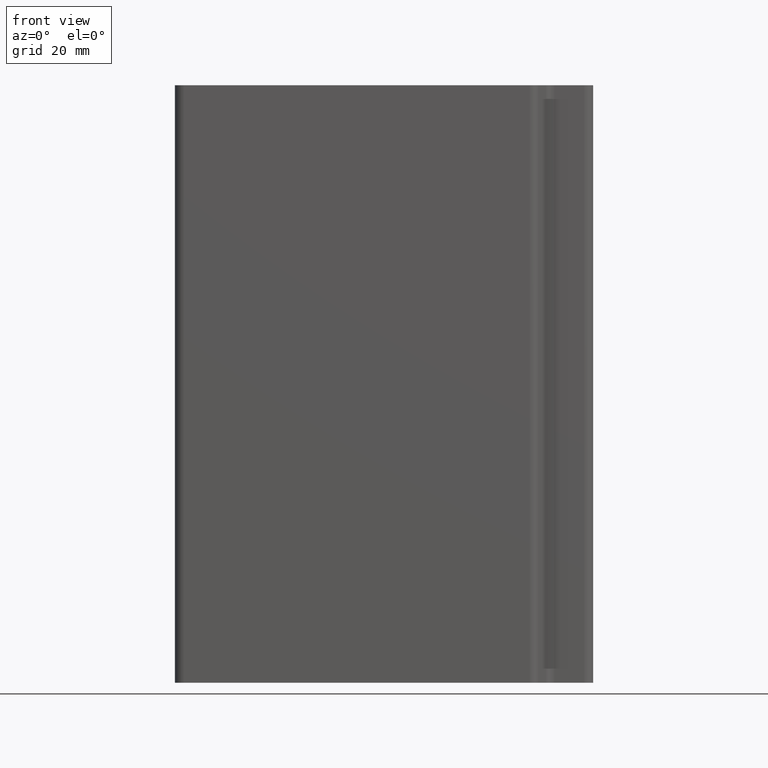
[diagram: clean part render]
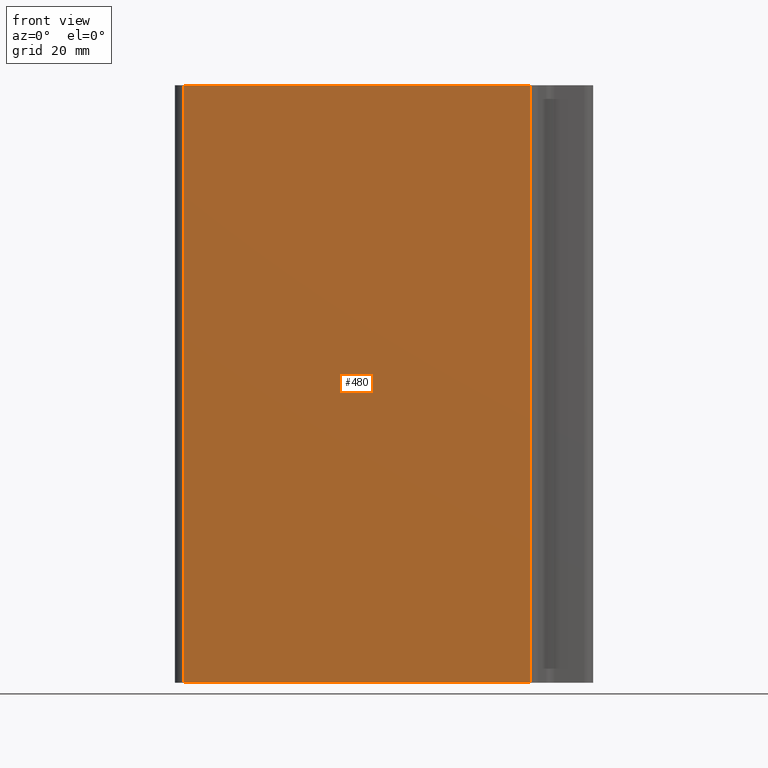
[diagram: same view with one face highlighted and labeled with its STEP entity id]
A machine part, front view. The second image highlights one B-rep face of the part: STEP entity #480.
In plain terms, the highlighted planar face has unit normal (-0, -1, 0).
Its self-contained STEP definition (entity closure, byte-faithful):
#16=PLANE('',#524);
#32=FACE_OUTER_BOUND('',#58,.T.);
#58=EDGE_LOOP('',(#333,#334,#335,#336));
#86=LINE('',#738,#134);
#87=LINE('',#741,#135);
#88=LINE('',#743,#136);
#89=LINE('',#744,#137);
#134=VECTOR('',#588,10.);
#135=VECTOR('',#591,10.);
#136=VECTOR('',#592,10.);
#137=VECTOR('',#593,10.);
#207=VERTEX_POINT('',#734);
#208=VERTEX_POINT('',#736);
#209=VERTEX_POINT('',#740);
#210=VERTEX_POINT('',#742);
#258=EDGE_CURVE('',#207,#208,#86,.T.);
#259=EDGE_CURVE('',#209,#207,#87,.T.);
#260=EDGE_CURVE('',#210,#208,#88,.T.);
#261=EDGE_CURVE('',#209,#210,#89,.T.);
#333=ORIENTED_EDGE('',*,*,#259,.T.);
#334=ORIENTED_EDGE('',*,*,#258,.T.);
#335=ORIENTED_EDGE('',*,*,#260,.F.);
#336=ORIENTED_EDGE('',*,*,#261,.F.);
#480=ADVANCED_FACE('',(#32),#16,.T.);
#524=AXIS2_PLACEMENT_3D('',#739,#589,#590);
#588=DIRECTION('',(0.,0.,1.));
#589=DIRECTION('center_axis',(-9.38209028727762E-34,-1.,0.));
#590=DIRECTION('ref_axis',(1.,-9.38209028727762E-34,0.));
#591=DIRECTION('',(1.,-9.38209028727762E-34,0.));
#592=DIRECTION('',(1.,-9.38209028727762E-34,0.));
#593=DIRECTION('',(0.,0.,1.));
#734=CARTESIAN_POINT('',(39.8444642362168,0.,0.));
#736=CARTESIAN_POINT('',(39.8444642362168,0.,200.));
#738=CARTESIAN_POINT('',(39.8444642362168,0.,0.));
#739=CARTESIAN_POINT('Origin',(-75.977640473723,3.30385244831335E-31,0.));
#740=CARTESIAN_POINT('',(-75.977640473723,8.88178419700125E-15,0.));
#741=CARTESIAN_POINT('',(-75.977640473723,3.30385244831335E-31,0.));
#742=CARTESIAN_POINT('',(-75.977640473723,8.88178419700125E-15,200.));
#743=CARTESIAN_POINT('',(-75.977640473723,3.30385244831335E-31,200.));
#744=CARTESIAN_POINT('',(-75.977640473723,8.88178419700125E-15,0.));